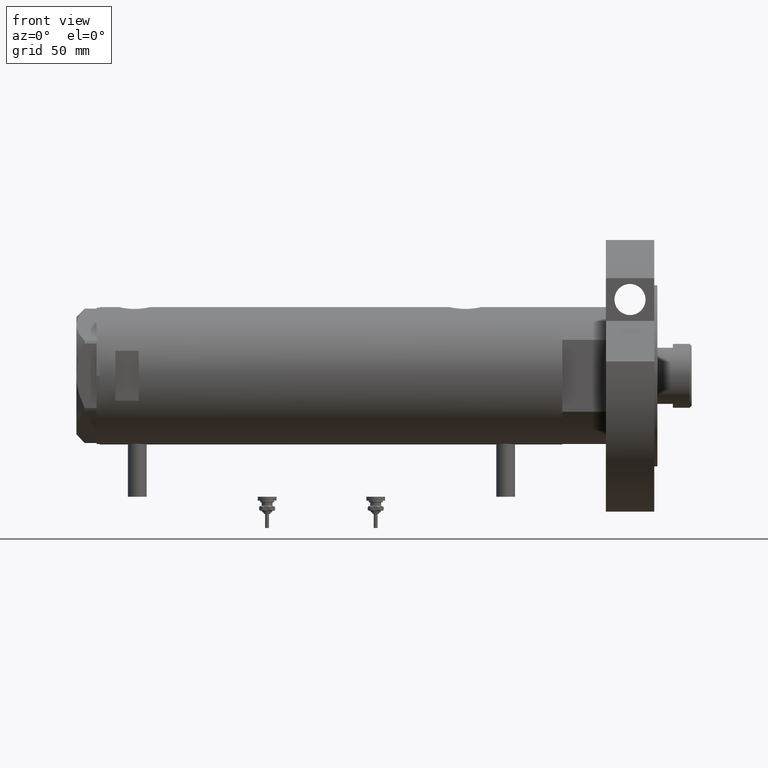
[diagram: clean part render]
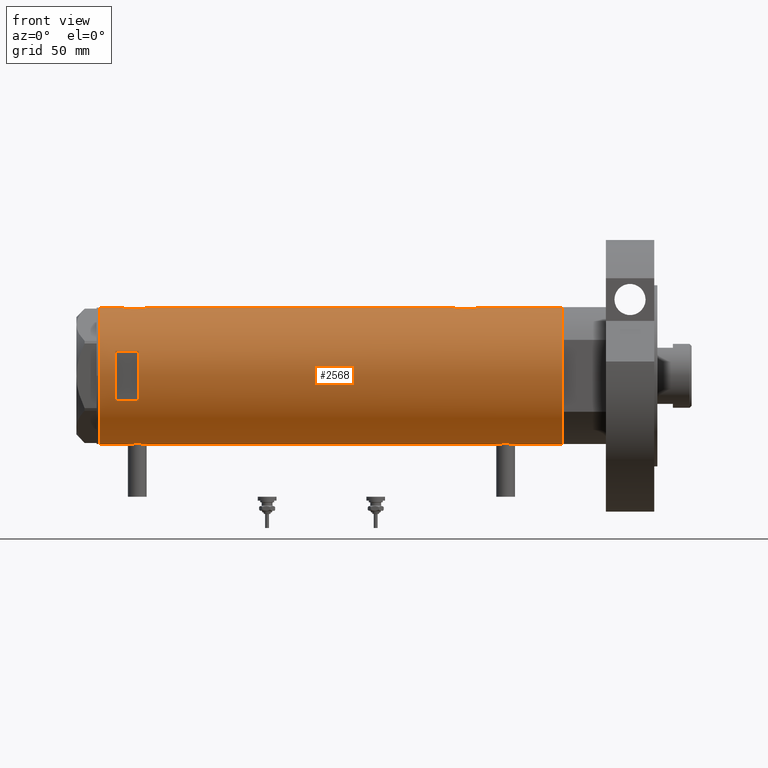
[diagram: same view with one face highlighted and labeled with its STEP entity id]
A machine part, front view. The second image highlights one B-rep face of the part: STEP entity #2568.
In plain terms, the highlighted cylindrical surface (partial cylindrical patch) has radius 44 mm, axis along (-1, -0, 0).
Its self-contained STEP definition (entity closure, byte-faithful):
#16 = CARTESIAN_POINT ( 'NONE',  ( 43.39114022679084570, -7.298186114522522416, 132.7441727949206438 ) ) ;
#41 = CARTESIAN_POINT ( 'NONE',  ( -15.96871942267132027, -40.99999999999999289, 138.1999999999999886 ) ) ;
#49 = CARTESIAN_POINT ( 'NONE',  ( -43.59994860325049615, -5.920144153815568799, 122.1859364243023549 ) ) ;
#110 = CARTESIAN_POINT ( 'NONE',  ( 42.89003040145178147, -9.821289533110931558, -84.13508371670005204 ) ) ;
#151 = CARTESIAN_POINT ( 'NONE',  ( 43.68175117880463887, -5.289576318274435529, -77.60722456708444383 ) ) ;
#162 = DIRECTION ( 'NONE',  ( 0.000000000000000000, 0.000000000000000000, 1.000000000000000000 ) ) ;
#165 = CARTESIAN_POINT ( 'NONE',  ( -43.55380622335314200, -6.250277076879244831, 124.6088983339019194 ) ) ;
#243 = CARTESIAN_POINT ( 'NONE',  ( -43.59959777593760322, -5.922725608094065564, 126.2064931121741864 ) ) ;
#255 = EDGE_CURVE ( 'NONE', #6309, #2042, #7272, .T. ) ;
#264 = DIRECTION ( 'NONE',  ( 0.000000000000000000, 0.000000000000000000, 1.000000000000000000 ) ) ;
#287 = CARTESIAN_POINT ( 'NONE',  ( -43.80623767923740530, -4.134861581628529237, 128.9043636726069337 ) ) ;
#291 = B_SPLINE_CURVE_WITH_KNOTS ( 'NONE', 3,
 ( #1922, #3697, #2521, #4352, #6020, #4841, #4247, #2563, #4880, #6643, #6061, #840, #2601, #3165, #2115, #3316, #1614, #6899, #5716, #4462, #6245, #4992, #1113, #4429, #3388, #6321, #2187, #2719, #2784, #4540, #3956, #3349, #6752, #7394, #5101, #6790, #6210, #7476, #7434, #3279, #5032, #6170, #5681 ),
 .UNSPECIFIED., .F., .F.,
 ( 4, 2, 2, 1, 2, 2, 2, 2, 2, 2, 2, 2, 2, 2, 2, 2, 2, 2, 2, 2, 2, 4 ),
 ( 0.01956509074799517994, 0.02078761141254040559, 0.02139887174481301668, 0.02201013207708563124, 0.02262139240935824580, 0.02323265274163085689, 0.02445517340617610336, 0.02567769407072134982, 0.02690021473526659629, 0.02751147506753922126, 0.02812273539981184622, 0.02934525606435713085, 0.03056777672890241548, 0.03117903706117506127, 0.03179029739344770011, 0.03301281805799302638, 0.03423533872253835264, 0.03545785938708367196, 0.03668038005162899129, 0.03729164038390166136, 0.03790290071617432449, 0.03912542138071965075 ),
 .UNSPECIFIED. ) ;
#341 = VECTOR ( 'NONE', #3260, 1000.000000000000000 ) ;
#345 = CARTESIAN_POINT ( 'NONE',  ( 43.98503203903424463, -1.316644100880403956, -96.03472955295633540 ) ) ;
#353 = CARTESIAN_POINT ( 'NONE',  ( 0.000000000000000000, 0.000000000000000000, -148.1999999999999886 ) ) ;
#418 = CARTESIAN_POINT ( 'NONE',  ( -44.00000000000000000, 5.388445781982983516E-15, 117.9500000000000028 ) ) ;
#425 = CARTESIAN_POINT ( 'NONE',  ( 44.00000000000000000, 0.000000000000000000, 148.1999999999999886 ) ) ;
#448 = LINE ( 'NONE', #5648, #5811 ) ;
#549 = CARTESIAN_POINT ( 'NONE',  ( 43.57790701154752355, -6.104591320335862825, 133.8474130089493315 ) ) ;
#566 = VECTOR ( 'NONE', #7335, 1000.000000000000000 ) ;
#591 = CARTESIAN_POINT ( 'NONE',  ( 43.71626298452614634, -5.019105827807306852, 117.2258656202040470 ) ) ;
#610 = ORIENTED_EDGE ( 'NONE', *, *, #4195, .F. ) ;
#662 = CARTESIAN_POINT ( 'NONE',  ( -43.88927795770376150, -3.124736516396337205, 118.7833259507619630 ) ) ;
#664 = EDGE_CURVE ( 'NONE', #1630, #5552, #6165, .T. ) ;
#688 = EDGE_CURVE ( 'NONE', #3393, #6590, #3245, .T. ) ;
#702 = CARTESIAN_POINT ( 'NONE',  ( 44.00000000000000000, -1.726036355082439716E-15, 115.9000000000000199 ) ) ;
#762 = CARTESIAN_POINT ( 'NONE',  ( 43.24192112218942441, -8.134529092006102857, -91.92552229864112689 ) ) ;
#796 = CARTESIAN_POINT ( 'NONE',  ( 42.84860178791321772, -9.999866241079296003, -85.76603617305838156 ) ) ;
#828 = VERTEX_POINT ( 'NONE', #5873 ) ;
#839 = CARTESIAN_POINT ( 'NONE',  ( 42.96858625215907779, -9.471543237354833167, -82.87555220689219482 ) ) ;
#840 = CARTESIAN_POINT ( 'NONE',  ( -43.80686114384900520, -4.128296917151112133, -116.6101585512831207 ) ) ;
#956 = EDGE_CURVE ( 'NONE', #3393, #5704, #1238, .T. ) ;
#998 = CARTESIAN_POINT ( 'NONE',  ( 43.85817087158034866, -3.542878095418174667, -95.45703661115521754 ) ) ;
#1001 = DIRECTION ( 'NONE',  ( 0.000000000000000000, 0.000000000000000000, 1.000000000000000000 ) ) ;
#1003 = EDGE_CURVE ( 'NONE', #1630, #2663, #448, .T. ) ;
#1060 = ORIENTED_EDGE ( 'NONE', *, *, #3067, .T. ) ;
#1096 = CARTESIAN_POINT ( 'NONE',  ( 42.84860178791323193, -9.999866241079301332, 126.2339638269416895 ) ) ;
#1113 = CARTESIAN_POINT ( 'NONE',  ( -43.55380622335315621, -6.250277076879243943, -111.4911016660981176 ) ) ;
#1115 = CARTESIAN_POINT ( 'NONE',  ( 44.00000000000000000, 0.000000000000000000, -148.1999999999999886 ) ) ;
#1129 = VERTEX_POINT ( 'NONE', #6977 ) ;
#1137 = CARTESIAN_POINT ( 'NONE',  ( 43.92776409818819872, -2.602555515054473467, 135.5780334928707589 ) ) ;
#1170 = CARTESIAN_POINT ( 'NONE',  ( -43.83572624786196315, -3.813948911733267888, 119.2316356977933651 ) ) ;
#1190 = VERTEX_POINT ( 'NONE', #7241 ) ;
#1206 = CARTESIAN_POINT ( 'NONE',  ( -43.64064219598290606, -5.614224114468902904, 121.4231451038052683 ) ) ;
#1210 = CARTESIAN_POINT ( 'NONE',  ( 44.00000000000000000, -3.917205576288906830E-21, 135.9000000000000341 ) ) ;
#1238 = B_SPLINE_CURVE_WITH_KNOTS ( 'NONE', 3,
 ( #4798, #6519, #1347, #1963, #4322, #4201, #3048, #6095, #151, #6642, #4285, #4766, #6678, #4245, #5376, #1425, #7132, #1302, #839, #6564, #110, #7095, #2600, #796, #2484, #3618, #4917, #1390, #3123, #5942, #762, #3086, #5413, #6605, #3696, #6019, #3729, #5455, #3163, #5499, #998, #4501, #6166, #6715, #345, #6130, #2670 ),
 .UNSPECIFIED., .F., .F.,
 ( 4, 2, 2, 2, 2, 2, 2, 2, 2, 2, 1, 2, 2, 2, 2, 2, 2, 2, 2, 2, 2, 2, 2, 4 ),
 ( 0.03136730421198213881, 0.03332724096696802751, 0.03528717772195391622, 0.03626714609944684670, 0.03724711447693978411, 0.03920705123192565894, 0.04018701960941859636, 0.04116698798691152683, 0.04312692474189736697, 0.04410689311939030438, 0.04508686149688324180, 0.04606682987437617921, 0.04704679825186912356, 0.04900673500685504003, 0.05096667176184094955, 0.05292660851682686601, 0.05390657689431983812, 0.05488654527181281717, 0.05586651364930578928, 0.05684648202679876139, 0.05880641878178470561, 0.05978638715927767078, 0.06076635553677063595, 0.06272629229175656629 ),
 .UNSPECIFIED. ) ;
#1246 = CARTESIAN_POINT ( 'NONE',  ( -43.55388615229802696, -6.249720082677238331, 123.7826748588801564 ) ) ;
#1282 = CARTESIAN_POINT ( 'NONE',  ( 43.98503203903423753, -1.316644100880400625, 115.9652704470436788 ) ) ;
#1302 = CARTESIAN_POINT ( 'NONE',  ( 42.99316244204495518, -9.359736474891656499, -82.56396979967827576 ) ) ;
#1321 = CARTESIAN_POINT ( 'NONE',  ( -43.60904414879379942, -5.852991024272610865, 126.4015631665290300 ) ) ;
#1347 = CARTESIAN_POINT ( 'NONE',  ( 43.98543813568861083, -1.304985013906736491, -76.16346933726120483 ) ) ;
#1368 = CARTESIAN_POINT ( 'NONE',  ( -43.66469451360047316, -5.426465874727615990, 127.3277459186421225 ) ) ;
#1390 = CARTESIAN_POINT ( 'NONE',  ( 42.96573602780769363, -9.487415353952519226, -89.32734544583622949 ) ) ;
#1425 = CARTESIAN_POINT ( 'NONE',  ( 43.13833976206232990, -8.672905216733550304, -81.07967078979186226 ) ) ;
#1439 = CARTESIAN_POINT ( 'NONE',  ( -43.95404166778755695, -2.020054257598456360, 130.1180894548565448 ) ) ;
#1443 = VECTOR ( 'NONE', #1001, 1000.000000000000000 ) ;
#1460 = CARTESIAN_POINT ( 'NONE',  ( 15.96871942267132027, -40.99999999999999289, -148.1999999999999886 ) ) ;
#1474 = VERTEX_POINT ( 'NONE', #4014 ) ;
#1486 = CARTESIAN_POINT ( 'NONE',  ( 44.00000000000000000, 0.000000000000000000, -148.1999999999999886 ) ) ;
#1575 = ORIENTED_EDGE ( 'NONE', *, *, #956, .F. ) ;
#1614 = CARTESIAN_POINT ( 'NONE',  ( -43.60943079847655213, -5.850114217193378430, -114.1092187592660849 ) ) ;
#1621 = CARTESIAN_POINT ( 'NONE',  ( 44.00000000000000000, 0.000000000000000000, -148.1999999999999886 ) ) ;
#1630 = VERTEX_POINT ( 'NONE', #3063 ) ;
#1706 = CARTESIAN_POINT ( 'NONE',  ( -43.93596008603758918, -2.395372424984029802, 118.4165081946938756 ) ) ;
#1747 = CARTESIAN_POINT ( 'NONE',  ( 42.86761451923556621, -9.918101748202657220, 127.2186752354962636 ) ) ;
#1781 = CARTESIAN_POINT ( 'NONE',  ( 43.85817087158036287, -3.542878095418166229, 116.5429633888447682 ) ) ;
#1822 = CARTESIAN_POINT ( 'NONE',  ( -43.55981666146649900, -6.208773019004407701, 123.3756200080638195 ) ) ;
#1825 = CARTESIAN_POINT ( 'NONE',  ( 42.84850870634925002, -10.00026508230968325, 125.2441608487825988 ) ) ;
#1848 = VERTEX_POINT ( 'NONE', #425 ) ;
#1867 = ORIENTED_EDGE ( 'NONE', *, *, #6425, .F. ) ;
#1868 = CARTESIAN_POINT ( 'NONE',  ( 43.13689707656755701, -8.680169016269175586, 120.8916309788880312 ) ) ;
#1886 = VERTEX_POINT ( 'NONE', #6837 ) ;
#1898 = CARTESIAN_POINT ( 'NONE',  ( -43.97729452866926891, -1.427712738744846055, 130.2882290744342981 ) ) ;
#1900 = CARTESIAN_POINT ( 'NONE',  ( 43.99999999999998579, -0.6628808997490075461, 115.8999999999999915 ) ) ;
#1922 = CARTESIAN_POINT ( 'NONE',  ( -44.00000000000000000, 5.388445781982983516E-15, -118.1500000000000057 ) ) ;
#1958 = FACE_OUTER_BOUND ( 'NONE', #2143, .T. ) ;
#1963 = CARTESIAN_POINT ( 'NONE',  ( 43.92776409818817740, -2.602555515054471247, -76.42196650712921269 ) ) ;
#1980 = CARTESIAN_POINT ( 'NONE',  ( -43.97029046111976669, -1.628482392291942471, 130.2375861979205354 ) ) ;
#1983 = VECTOR ( 'NONE', #4789, 1000.000000000000000 ) ;
#2027 = LINE ( 'NONE', #7242, #3769 ) ;
#2042 = VERTEX_POINT ( 'NONE', #41 ) ;
#2066 = B_SPLINE_CURVE_WITH_KNOTS ( 'NONE', 3,
 ( #2314, #5312, #2843, #5277, #6923, #2984, #1706, #4063, #662, #4668, #1170, #7001, #4094, #6421, #4138, #1206, #3519, #49, #2387, #4698, #1822, #1246, #165, #3179, #3064, #6500, #243, #1321, #6075, #1368, #7191, #3677, #287, #6034, #2462, #2577, #4931, #1439, #1980, #1898, #5516, #4810, #3102 ),
 .UNSPECIFIED., .F., .F.,
 ( 4, 2, 2, 1, 2, 2, 2, 2, 2, 2, 2, 2, 2, 2, 2, 2, 2, 2, 2, 2, 2, 4 ),
 ( 0.01956509074799516260, 0.02078761141254046457, 0.02139887174481311383, 0.02201013207708576655, 0.02262139240935841580, 0.02323265274163106506, 0.02445517340617638785, 0.02567769407072171411, 0.02690021473526703691, 0.02751147506753969657, 0.02812273539981235970, 0.02934525606435772760, 0.03056777672890308856, 0.03117903706117573087, 0.03179029739344837319, 0.03301281805799358149, 0.03423533872253878979, 0.03545785938708399809, 0.03668038005162919946, 0.03729164038390180014, 0.03790290071617440082, 0.03912542138071962300 ),
 .UNSPECIFIED. ) ;
#2078 = VECTOR ( 'NONE', #264, 1000.000000000000000 ) ;
#2115 = CARTESIAN_POINT ( 'NONE',  ( -43.66524845950890210, -5.422010366683132965, -115.0353804335297809 ) ) ;
#2133 = ORIENTED_EDGE ( 'NONE', *, *, #688, .T. ) ;
#2143 = EDGE_LOOP ( 'NONE', ( #2578, #2201, #2228, #1575, #2133, #2737, #1060, #4001, #7174, #3087, #5996, #610 ) ) ;
#2172 = AXIS2_PLACEMENT_3D ( 'NONE', #6673, #6558, #2441 ) ;
#2187 = CARTESIAN_POINT ( 'NONE',  ( -43.59959777593760322, -5.922725608094071781, -109.8935068878258079 ) ) ;
#2193 = DIRECTION ( 'NONE',  ( 0.000000000000000000, 0.000000000000000000, 1.000000000000000000 ) ) ;
#2201 = ORIENTED_EDGE ( 'NONE', *, *, #664, .T. ) ;
#2217 = VECTOR ( 'NONE', #3802, 1000.000000000000000 ) ;
#2228 = ORIENTED_EDGE ( 'NONE', *, *, #4511, .T. ) ;
#2277 = CARTESIAN_POINT ( 'NONE',  ( 43.27890888111421930, -7.936045294464972422, 131.9931843665719668 ) ) ;
#2287 = EDGE_CURVE ( 'NONE', #1474, #4263, #3922, .T. ) ;
#2314 = CARTESIAN_POINT ( 'NONE',  ( -44.00000000000000000, 5.388445781982983516E-15, 117.9500000000000028 ) ) ;
#2316 = CARTESIAN_POINT ( 'NONE',  ( 43.39001814939471302, -7.304817421876452777, 119.0629653932832497 ) ) ;
#2353 = CARTESIAN_POINT ( 'NONE',  ( 44.00000000000000000, -1.726036355082439716E-15, 115.9000000000000199 ) ) ;
#2355 = CARTESIAN_POINT ( 'NONE',  ( 42.92195198079053142, -9.681069926205541520, 123.3106749909349134 ) ) ;
#2387 = CARTESIAN_POINT ( 'NONE',  ( -43.58358352828439308, -6.039443007521653861, 122.5783690161426023 ) ) ;
#2388 = CARTESIAN_POINT ( 'NONE',  ( 43.88549648731375896, -3.229309612650777872, 135.3866430248638437 ) ) ;
#2422 = DIRECTION ( 'NONE',  ( -1.000000000000000000, 0.000000000000000000, 0.000000000000000000 ) ) ;
#2427 = CARTESIAN_POINT ( 'NONE',  ( 43.35323102813806173, -7.519449998269469582, 132.5004228928426642 ) ) ;
#2441 = DIRECTION ( 'NONE',  ( 1.000000000000000000, 0.000000000000000000, 0.000000000000000000 ) ) ;
#2458 = CIRCLE ( 'NONE', #5980, 44.00000000000000000 ) ;
#2462 = CARTESIAN_POINT ( 'NONE',  ( -43.88932649443425049, -3.137583818903188160, 129.6209903805954866 ) ) ;
#2484 = CARTESIAN_POINT ( 'NONE',  ( 42.84850870634926423, -10.00026508230968503, -86.75583915121745804 ) ) ;
#2521 = CARTESIAN_POINT ( 'NONE',  ( -43.99432382855034973, -0.8140126287075730716, -118.1104216681691526 ) ) ;
#2539 = CARTESIAN_POINT ( 'NONE',  ( 0.000000000000000000, 0.000000000000000000, 148.1999999999999886 ) ) ;
#2563 = CARTESIAN_POINT ( 'NONE',  ( -43.91347832647110039, -2.763895659397271665, -117.5093864937758497 ) ) ;
#2568 = ADVANCED_FACE ( 'NONE', ( #1958, #7243 ), #5978, .T. ) ;
#2577 = CARTESIAN_POINT ( 'NONE',  ( -43.91398925748692506, -2.775454910411446541, 129.8147077568106624 ) ) ;
#2578 = ORIENTED_EDGE ( 'NONE', *, *, #1003, .F. ) ;
#2580 = CARTESIAN_POINT ( 'NONE',  ( 43.92391465552169194, -2.605621203777300554, 116.2398198489821937 ) ) ;
#2600 = CARTESIAN_POINT ( 'NONE',  ( 42.85249883256043546, -9.983208936152868418, -85.43427783458179192 ) ) ;
#2601 = CARTESIAN_POINT ( 'NONE',  ( -43.74870614644074607, -4.704745394280565485, -116.0344648734002249 ) ) ;
#2663 = VERTEX_POINT ( 'NONE', #6202 ) ;
#2670 = CARTESIAN_POINT ( 'NONE',  ( 44.00000000000000000, -2.552687571866728611E-15, -96.10000000000000853 ) ) ;
#2719 = CARTESIAN_POINT ( 'NONE',  ( -43.60904414879379942, -5.852991024272603759, -109.6984368334709075 ) ) ;
#2737 = ORIENTED_EDGE ( 'NONE', *, *, #7427, .F. ) ;
#2784 = CARTESIAN_POINT ( 'NONE',  ( -43.64013512596971367, -5.618144550806293047, -109.1311574562683404 ) ) ;
#2843 = CARTESIAN_POINT ( 'NONE',  ( -43.99432382855035684, -0.8140126287075735156, 117.9895783318308560 ) ) ;
#2878 = CARTESIAN_POINT ( 'NONE',  ( 43.07447880731469780, -8.980869115410031966, 130.3470997020410209 ) ) ;
#2905 = VERTEX_POINT ( 'NONE', #5207 ) ;
#2916 = CARTESIAN_POINT ( 'NONE',  ( 43.80655905412561424, -4.132395729537634566, 135.0120532619376377 ) ) ;
#2984 = CARTESIAN_POINT ( 'NONE',  ( -43.95442538259508325, -2.011679190499021885, 118.2790645349021617 ) ) ;
#2985 = CARTESIAN_POINT ( 'NONE',  ( 43.71528002050701645, -5.005885132985630648, 134.5630630671448955 ) ) ;
#3048 = CARTESIAN_POINT ( 'NONE',  ( 43.77763691689010273, -4.427538730370040199, -77.12757287791932015 ) ) ;
#3063 = CARTESIAN_POINT ( 'NONE',  ( -44.00000000000000000, 5.388445916248353619E-15, -148.1999999999999886 ) ) ;
#3064 = CARTESIAN_POINT ( 'NONE',  ( -43.57636709704393496, -6.091127289750671636, 125.6149932566098215 ) ) ;
#3067 = EDGE_CURVE ( 'NONE', #1886, #1848, #7268, .T. ) ;
#3086 = CARTESIAN_POINT ( 'NONE',  ( 43.27861175590267351, -7.937636171351966752, -92.19102867990994810 ) ) ;
#3087 = ORIENTED_EDGE ( 'NONE', *, *, #6666, .F. ) ;
#3102 = CARTESIAN_POINT ( 'NONE',  ( -44.00000000000000000, 3.205170455528113082E-15, 130.4500000000000171 ) ) ;
#3103 = ORIENTED_EDGE ( 'NONE', *, *, #3530, .F. ) ;
#3123 = CARTESIAN_POINT ( 'NONE',  ( 43.07321175413309788, -8.986876637256990819, -90.53428201988754154 ) ) ;
#3163 = CARTESIAN_POINT ( 'NONE',  ( 43.71626298452615345, -5.019105827807321951, -94.77413437979603827 ) ) ;
#3165 = CARTESIAN_POINT ( 'NONE',  ( -43.71916086763248899, -4.968610719017467758, -115.7133599885462871 ) ) ;
#3179 = CARTESIAN_POINT ( 'NONE',  ( -43.55964145621772587, -6.209995197331128480, 125.0152361338357565 ) ) ;
#3245 = LINE ( 'NONE', #1621, #566 ) ;
#3260 = DIRECTION ( 'NONE',  ( 0.000000000000000000, 0.000000000000000000, 1.000000000000000000 ) ) ;
#3279 = CARTESIAN_POINT ( 'NONE',  ( -43.97729452866927602, -1.427712738744854715, -105.8117709255657815 ) ) ;
#3280 = CARTESIAN_POINT ( 'NONE',  ( -44.00000000000000000, 5.388445916248353619E-15, -148.1999999999999886 ) ) ;
#3316 = CARTESIAN_POINT ( 'NONE',  ( -43.64064219598290606, -5.614224114468902904, -114.6768548961947261 ) ) ;
#3346 = DIRECTION ( 'NONE',  ( 0.000000000000000000, 0.000000000000000000, 1.000000000000000000 ) ) ;
#3349 = CARTESIAN_POINT ( 'NONE',  ( -43.74813644611199948, -4.709999724143497879, -107.7715595605677095 ) ) ;
#3388 = CARTESIAN_POINT ( 'NONE',  ( -43.57636709704394917, -6.091127289750676077, -110.4850067433901586 ) ) ;
#3393 = VERTEX_POINT ( 'NONE', #3937 ) ;
#3410 = CARTESIAN_POINT ( 'NONE',  ( 43.35257225115238100, -7.523216248090027314, 119.3039469640765731 ) ) ;
#3519 = CARTESIAN_POINT ( 'NONE',  ( -43.60943079847653792, -5.850114217193379318, 121.9907812407339378 ) ) ;
#3521 = CARTESIAN_POINT ( 'NONE',  ( 42.86369059155248351, -9.935849517229273786, 124.5936258998180222 ) ) ;
#3530 = EDGE_CURVE ( 'NONE', #1190, #828, #5940, .T. ) ;
#3618 = CARTESIAN_POINT ( 'NONE',  ( 42.86369059155249772, -9.935849517229277339, -87.40637410018203468 ) ) ;
#3637 = CARTESIAN_POINT ( 'NONE',  ( 43.88203303552249679, -3.235230624304762603, 116.4320738693601811 ) ) ;
#3677 = CARTESIAN_POINT ( 'NONE',  ( -43.74813644611202079, -4.709999724143500544, 128.3284404394322564 ) ) ;
#3696 = CARTESIAN_POINT ( 'NONE',  ( 43.46477581456301920, -6.845969322274847890, -93.39644460123308534 ) ) ;
#3697 = CARTESIAN_POINT ( 'NONE',  ( -44.00000000000001421, -0.4080709675389184166, -118.1500000000000341 ) ) ;
#3729 = CARTESIAN_POINT ( 'NONE',  ( 43.57553740812846144, -6.102230194686624642, -94.02899655988670702 ) ) ;
#3750 = CARTESIAN_POINT ( 'NONE',  ( 0.000000000000000000, 0.000000000000000000, 138.1999999999999886 ) ) ;
#3769 = VECTOR ( 'NONE', #4234, 1000.000000000000000 ) ;
#3802 = DIRECTION ( 'NONE',  ( 0.000000000000000000, 0.000000000000000000, 1.000000000000000000 ) ) ;
#3834 = ORIENTED_EDGE ( 'NONE', *, *, #5955, .F. ) ;
#3922 = LINE ( 'NONE', #3280, #1443 ) ;
#3937 = CARTESIAN_POINT ( 'NONE',  ( 44.00000000000000000, -3.917104602093038540E-21, -76.10000000000000853 ) ) ;
#3956 = CARTESIAN_POINT ( 'NONE',  ( -43.71863308610073773, -4.973248429199020215, -108.0926220987882687 ) ) ;
#4001 = ORIENTED_EDGE ( 'NONE', *, *, #6739, .F. ) ;
#4014 = CARTESIAN_POINT ( 'NONE',  ( -44.00000000000000000, 4.742435893011557518E-16, -105.6499999999999915 ) ) ;
#4063 = CARTESIAN_POINT ( 'NONE',  ( -43.91347832647110039, -2.763895659397270776, 118.5906135062241589 ) ) ;
#4064 = CARTESIAN_POINT ( 'NONE',  ( 43.57553740812844723, -6.102230194686611320, 117.9710034401132788 ) ) ;
#4094 = CARTESIAN_POINT ( 'NONE',  ( -43.74870614644076738, -4.704745394280562820, 120.0655351265997410 ) ) ;
#4138 = CARTESIAN_POINT ( 'NONE',  ( -43.66524845950888789, -5.422010366683132965, 121.0646195664701850 ) ) ;
#4141 = CARTESIAN_POINT ( 'NONE',  ( 42.96573602780769363, -9.487415353952519226, 122.6726545541638274 ) ) ;
#4195 = EDGE_CURVE ( 'NONE', #2663, #1474, #291, .T. ) ;
#4201 = CARTESIAN_POINT ( 'NONE',  ( 43.80655905412562134, -4.132395729537634566, -76.98794673806234812 ) ) ;
#4234 = DIRECTION ( 'NONE',  ( 0.000000000000000000, 0.000000000000000000, 1.000000000000000000 ) ) ;
#4236 = LINE ( 'NONE', #1460, #2217 ) ;
#4245 = CARTESIAN_POINT ( 'NONE',  ( 43.27890888111423351, -7.936045294464974198, -80.00681563342807578 ) ) ;
#4247 = CARTESIAN_POINT ( 'NONE',  ( -43.93596008603760339, -2.395372424984027582, -117.6834918053061330 ) ) ;
#4263 = VERTEX_POINT ( 'NONE', #418 ) ;
#4269 = CARTESIAN_POINT ( 'NONE',  ( -15.96871942267132027, -40.99999999999999289, -148.1999999999999886 ) ) ;
#4285 = CARTESIAN_POINT ( 'NONE',  ( 43.50370990764398016, -6.606474645717129057, -78.56479064715114191 ) ) ;
#4322 = CARTESIAN_POINT ( 'NONE',  ( 43.88549648731377317, -3.229309612650779648, -76.61335697513617049 ) ) ;
#4352 = CARTESIAN_POINT ( 'NONE',  ( -43.97755541524606571, -1.419649999726221967, -117.9901114392363439 ) ) ;
#4429 = CARTESIAN_POINT ( 'NONE',  ( -43.55964145621772587, -6.209995197331129368, -111.0847638661642947 ) ) ;
#4436 = DIRECTION ( 'NONE',  ( 1.000000000000000000, 0.000000000000000000, 0.000000000000000000 ) ) ;
#4462 = CARTESIAN_POINT ( 'NONE',  ( -43.57664920749031978, -6.089110472216501257, -113.3236308686941385 ) ) ;
#4501 = CARTESIAN_POINT ( 'NONE',  ( 43.88203303552248968, -3.235230624304769709, -95.56792613063983310 ) ) ;
#4502 = EDGE_CURVE ( 'NONE', #2905, #1129, #2027, .T. ) ;
#4511 = EDGE_CURVE ( 'NONE', #5552, #5704, #7128, .T. ) ;
#4540 = CARTESIAN_POINT ( 'NONE',  ( -43.66469451360045895, -5.426465874727613325, -108.7722540813579002 ) ) ;
#4564 = EDGE_LOOP ( 'NONE', ( #3103, #1867, #5485, #3834 ) ) ;
#4633 = CARTESIAN_POINT ( 'NONE',  ( 42.89003040145177437, -9.821289533110936887, 127.8649162832999622 ) ) ;
#4668 = CARTESIAN_POINT ( 'NONE',  ( -43.87623998657198143, -3.302247739865014964, 118.8896565648025785 ) ) ;
#4669 = CARTESIAN_POINT ( 'NONE',  ( 43.77905627191559290, -4.445085099228545111, 116.9185916568396806 ) ) ;
#4698 = CARTESIAN_POINT ( 'NONE',  ( -43.57664920749031978, -6.089110472216502146, 122.7763691313058985 ) ) ;
#4700 = CARTESIAN_POINT ( 'NONE',  ( 43.50370990764397305, -6.606474645717115735, 133.4352093528489149 ) ) ;
#4704 = AXIS2_PLACEMENT_3D ( 'NONE', #353, #2193, #4436 ) ;
#4742 = CARTESIAN_POINT ( 'NONE',  ( 43.07321175413309078, -8.986876637256990819, 121.4657179801124727 ) ) ;
#4766 = CARTESIAN_POINT ( 'NONE',  ( 43.39114022679083860, -7.298186114522535739, -79.25582720507938461 ) ) ;
#4789 = DIRECTION ( 'NONE',  ( -0.000000000000000000, -0.000000000000000000, -1.000000000000000000 ) ) ;
#4798 = CARTESIAN_POINT ( 'NONE',  ( 44.00000000000000000, -3.917104602093038540E-21, -76.10000000000000853 ) ) ;
#4810 = CARTESIAN_POINT ( 'NONE',  ( -43.99999999999999289, -0.4134142287044815789, 130.4500000000000455 ) ) ;
#4812 = CARTESIAN_POINT ( 'NONE',  ( 43.94187300917954531, -2.283844398366604800, 116.1587395318295250 ) ) ;
#4813 = DIRECTION ( 'NONE',  ( -0.000000000000000000, 0.000000000000000000, -1.000000000000000000 ) ) ;
#4841 = CARTESIAN_POINT ( 'NONE',  ( -43.95442538259509746, -2.011679190499023662, -117.8209354650977616 ) ) ;
#4854 = DIRECTION ( 'NONE',  ( 1.000000000000000000, 0.000000000000000000, 0.000000000000000000 ) ) ;
#4880 = CARTESIAN_POINT ( 'NONE',  ( -43.88927795770375440, -3.124736516396337649, -117.3166740492380598 ) ) ;
#4917 = CARTESIAN_POINT ( 'NONE',  ( 42.92195198079053142, -9.681069926205539744, -88.68932500906515770 ) ) ;
#4931 = CARTESIAN_POINT ( 'NONE',  ( -43.94477385411916259, -2.211843467998029222, 130.0490722992286408 ) ) ;
#4992 = CARTESIAN_POINT ( 'NONE',  ( -43.55388615229803406, -6.249720082677240107, -112.3173251411198379 ) ) ;
#5032 = CARTESIAN_POINT ( 'NONE',  ( -43.99417593155912698, -0.8219945290704717689, -105.6906189758703931 ) ) ;
#5101 = CARTESIAN_POINT ( 'NONE',  ( -43.88932649443422918, -3.137583818903199262, -106.4790096194045788 ) ) ;
#5199 = CARTESIAN_POINT ( 'NONE',  ( 42.99316244204496229, -9.359736474891649394, 129.4360302003217669 ) ) ;
#5207 = CARTESIAN_POINT ( 'NONE',  ( -44.00000000000000000, 3.205170455528113082E-15, 130.4500000000000171 ) ) ;
#5242 = CARTESIAN_POINT ( 'NONE',  ( 43.24269204559828239, -8.130405600641548602, 131.7311450280699034 ) ) ;
#5277 = CARTESIAN_POINT ( 'NONE',  ( -43.97755541524607992, -1.419649999726221745, 118.1098885607636646 ) ) ;
#5312 = CARTESIAN_POINT ( 'NONE',  ( -44.00000000000001421, -0.4080709675389180835, 117.9500000000000171 ) ) ;
#5314 = CARTESIAN_POINT ( 'NONE',  ( 43.68175117880464597, -5.289576318274422206, 134.3927754329155846 ) ) ;
#5376 = CARTESIAN_POINT ( 'NONE',  ( 43.24269204559829660, -8.130405600641545050, -80.26885497193008234 ) ) ;
#5413 = CARTESIAN_POINT ( 'NONE',  ( 43.35257225115238811, -7.523216248090025537, -92.69605303592345535 ) ) ;
#5440 = AXIS2_PLACEMENT_3D ( 'NONE', #3750, #4813, #6732 ) ;
#5455 = CARTESIAN_POINT ( 'NONE',  ( 43.61181667275830165, -5.838254419127787642, -94.22544109417493985 ) ) ;
#5471 = DIRECTION ( 'NONE',  ( 0.000000000000000000, 0.000000000000000000, 1.000000000000000000 ) ) ;
#5485 = ORIENTED_EDGE ( 'NONE', *, *, #255, .F. ) ;
#5499 = CARTESIAN_POINT ( 'NONE',  ( 43.77905627191558580, -4.445085099228550440, -95.08140834316036205 ) ) ;
#5516 = CARTESIAN_POINT ( 'NONE',  ( -43.99417593155911987, -0.8219945290704597785, 130.4093810241296012 ) ) ;
#5552 = VERTEX_POINT ( 'NONE', #1115 ) ;
#5648 = CARTESIAN_POINT ( 'NONE',  ( -44.00000000000000000, 5.388445916248353619E-15, -148.1999999999999886 ) ) ;
#5681 = CARTESIAN_POINT ( 'NONE',  ( -44.00000000000000000, 4.742435893011557518E-16, -105.6499999999999915 ) ) ;
#5704 = VERTEX_POINT ( 'NONE', #6482 ) ;
#5716 = CARTESIAN_POINT ( 'NONE',  ( -43.58358352828439308, -6.039443007521657414, -113.5216309838574347 ) ) ;
#5811 = VECTOR ( 'NONE', #3346, 1000.000000000000000 ) ;
#5873 = CARTESIAN_POINT ( 'NONE',  ( 15.96871942267132027, -40.99999999999999289, 123.1999999999999744 ) ) ;
#5888 = CARTESIAN_POINT ( 'NONE',  ( 42.92612181419237771, -9.662173761604313071, 128.4979978960971323 ) ) ;
#5940 = CIRCLE ( 'NONE', #6919, 44.00000000000000000 ) ;
#5942 = CARTESIAN_POINT ( 'NONE',  ( 43.13689707656756411, -8.680169016269173810, -91.10836902111202562 ) ) ;
#5955 = EDGE_CURVE ( 'NONE', #828, #6309, #4236, .T. ) ;
#5978 = CYLINDRICAL_SURFACE ( 'NONE', #2172, 44.00000000000000000 ) ;
#5980 = AXIS2_PLACEMENT_3D ( 'NONE', #2539, #5471, #4854 ) ;
#5996 = ORIENTED_EDGE ( 'NONE', *, *, #2287, .F. ) ;
#6019 = CARTESIAN_POINT ( 'NONE',  ( 43.50208939911752992, -6.605519787823897815, -93.61487246254432648 ) ) ;
#6020 = CARTESIAN_POINT ( 'NONE',  ( -43.97059312650996787, -1.620278982928820888, -117.9397869138586827 ) ) ;
#6034 = CARTESIAN_POINT ( 'NONE',  ( -43.83513771791772484, -3.820747781112540764, 129.1632101829637236 ) ) ;
#6061 = CARTESIAN_POINT ( 'NONE',  ( -43.83572624786197025, -3.813948911733268776, -116.8683643022066150 ) ) ;
#6075 = CARTESIAN_POINT ( 'NONE',  ( -43.64013512596971367, -5.618144550806302817, 126.9688425437316681 ) ) ;
#6088 = CARTESIAN_POINT ( 'NONE',  ( 44.00000000000000000, 0.000000000000000000, -148.1999999999999886 ) ) ;
#6095 = CARTESIAN_POINT ( 'NONE',  ( 43.71528002050701645, -5.005885132985640418, -77.43693693285514712 ) ) ;
#6130 = CARTESIAN_POINT ( 'NONE',  ( 43.99999999999999289, -0.6628808997490059918, -96.10000000000000853 ) ) ;
#6165 = CIRCLE ( 'NONE', #4704, 44.00000000000000000 ) ;
#6166 = CARTESIAN_POINT ( 'NONE',  ( 43.92391465552168484, -2.605621203777308104, -95.76018015101779213 ) ) ;
#6170 = CARTESIAN_POINT ( 'NONE',  ( -44.00000000000000711, -0.4134142287044808017, -105.6500000000000057 ) ) ;
#6202 = CARTESIAN_POINT ( 'NONE',  ( -44.00000000000000000, 5.388445781982983516E-15, -118.1500000000000057 ) ) ;
#6210 = CARTESIAN_POINT ( 'NONE',  ( -43.94477385411916970, -2.211843467998029666, -106.0509277007713678 ) ) ;
#6245 = CARTESIAN_POINT ( 'NONE',  ( -43.55981666146650610, -6.208773019004409477, -112.7243799919361606 ) ) ;
#6307 = CARTESIAN_POINT ( 'NONE',  ( 43.27861175590269482, -7.937636171351966752, 119.8089713200900661 ) ) ;
#6309 = VERTEX_POINT ( 'NONE', #6432 ) ;
#6321 = CARTESIAN_POINT ( 'NONE',  ( -43.58327167020068060, -6.041691433183235205, -110.2867244921663428 ) ) ;
#6351 = CARTESIAN_POINT ( 'NONE',  ( 43.98543813568862504, -1.304985013906734048, 135.8365306627388236 ) ) ;
#6387 = CARTESIAN_POINT ( 'NONE',  ( 43.61181667275830875, -5.838254419127776096, 117.7745589058250744 ) ) ;
#6421 = CARTESIAN_POINT ( 'NONE',  ( -43.71916086763250320, -4.968610719017469535, 120.3866400114537782 ) ) ;
#6424 = CARTESIAN_POINT ( 'NONE',  ( 43.46477581456304051, -6.845969322274839008, 118.6035553987669147 ) ) ;
#6425 = EDGE_CURVE ( 'NONE', #2042, #1190, #6665, .T. ) ;
#6432 = CARTESIAN_POINT ( 'NONE',  ( 15.96871942267132027, -40.99999999999999289, 138.1999999999999886 ) ) ;
#6462 = CARTESIAN_POINT ( 'NONE',  ( 42.85249883256044257, -9.983208936152875523, 126.5657221654182791 ) ) ;
#6482 = CARTESIAN_POINT ( 'NONE',  ( 44.00000000000000000, -2.552687571866728611E-15, -96.10000000000000853 ) ) ;
#6500 = CARTESIAN_POINT ( 'NONE',  ( -43.58327167020067350, -6.041691433183231652, 125.8132755078336658 ) ) ;
#6519 = CARTESIAN_POINT ( 'NONE',  ( 44.00000000000000000, -0.6537011444665536963, -76.10000000000002274 ) ) ;
#6558 = DIRECTION ( 'NONE',  ( 0.000000000000000000, 0.000000000000000000, 1.000000000000000000 ) ) ;
#6564 = CARTESIAN_POINT ( 'NONE',  ( 42.92612181419234219, -9.662173761604309519, -83.50200210390283928 ) ) ;
#6590 = VERTEX_POINT ( 'NONE', #2353 ) ;
#6605 = CARTESIAN_POINT ( 'NONE',  ( 43.39001814939470592, -7.304817421876465211, -92.93703460671677874 ) ) ;
#6642 = CARTESIAN_POINT ( 'NONE',  ( 43.57790701154753066, -6.104591320335878812, -78.15258699105068274 ) ) ;
#6643 = CARTESIAN_POINT ( 'NONE',  ( -43.87623998657198143, -3.302247739865014964, -117.2103434351974443 ) ) ;
#6665 = LINE ( 'NONE', #4269, #1983 ) ;
#6666 = EDGE_CURVE ( 'NONE', #4263, #2905, #2066, .T. ) ;
#6673 = CARTESIAN_POINT ( 'NONE',  ( 0.000000000000000000, 0.000000000000000000, -148.1999999999999886 ) ) ;
#6678 = CARTESIAN_POINT ( 'NONE',  ( 43.35323102813806173, -7.519449998269473134, -79.49957710715735004 ) ) ;
#6715 = CARTESIAN_POINT ( 'NONE',  ( 43.94187300917954531, -2.283844398366611905, -95.84126046817046074 ) ) ;
#6732 = DIRECTION ( 'NONE',  ( 1.000000000000000000, 0.000000000000000000, 0.000000000000000000 ) ) ;
#6739 = EDGE_CURVE ( 'NONE', #1129, #1848, #2458, .T. ) ;
#6752 = CARTESIAN_POINT ( 'NONE',  ( -43.80623767923739109, -4.134861581628527460, -107.1956363273930464 ) ) ;
#6774 = B_SPLINE_CURVE_WITH_KNOTS ( 'NONE', 3,
 ( #1210, #6925, #6351, #1137, #2388, #2916, #7494, #2985, #5314, #549, #4700, #16, #2427, #2277, #5242, #7040, #2878, #5199, #7075, #5888, #4633, #1747, #6462, #1096, #1825, #3521, #2355, #4141, #4742, #1868, #7534, #6307, #3410, #2316, #6424, #6967, #4064, #6387, #591, #4669, #1781, #3637, #2580, #4812, #1282, #1900, #702 ),
 .UNSPECIFIED., .F., .F.,
 ( 4, 2, 2, 2, 2, 2, 2, 2, 2, 2, 1, 2, 2, 2, 2, 2, 2, 2, 2, 2, 2, 2, 2, 4 ),
 ( 0.03136730421198213187, 0.03332724096696802751, 0.03528717772195392316, 0.03626714609944686751, 0.03724711447693981187, 0.03920705123192570751, 0.04018701960941865881, 0.04116698798691159622, 0.04312692474189755432, 0.04410689311939049867, 0.04508686149688344302, 0.04606682987437638044, 0.04704679825186932479, 0.04900673500685520656, 0.05096667176184109527, 0.05292660851682697010, 0.05390657689431993527, 0.05488654527181288656, 0.05586651364930585173, 0.05684648202679880302, 0.05880641878178471949, 0.05978638715927768466, 0.06076635553677064983, 0.06272629229175658017 ),
 .UNSPECIFIED. ) ;
#6790 = CARTESIAN_POINT ( 'NONE',  ( -43.91398925748691084, -2.775454910411443876, -106.2852922431893319 ) ) ;
#6837 = CARTESIAN_POINT ( 'NONE',  ( 44.00000000000000000, -3.917205576288906830E-21, 135.9000000000000341 ) ) ;
#6899 = CARTESIAN_POINT ( 'NONE',  ( -43.59994860325051036, -5.920144153815573240, -113.9140635756975968 ) ) ;
#6919 = AXIS2_PLACEMENT_3D ( 'NONE', #7034, #162, #2422 ) ;
#6923 = CARTESIAN_POINT ( 'NONE',  ( -43.97059312650997498, -1.620278982928819778, 118.1602130861413116 ) ) ;
#6925 = CARTESIAN_POINT ( 'NONE',  ( 43.99999999999999289, -0.6537011444665495885, 135.9000000000000341 ) ) ;
#6967 = CARTESIAN_POINT ( 'NONE',  ( 43.50208939911753703, -6.605519787823886269, 118.3851275374557162 ) ) ;
#6977 = CARTESIAN_POINT ( 'NONE',  ( -44.00000000000000000, 5.388445916248353619E-15, 148.1999999999999886 ) ) ;
#7001 = CARTESIAN_POINT ( 'NONE',  ( -43.80686114384899810, -4.128296917151109469, 119.4898414487168878 ) ) ;
#7034 = CARTESIAN_POINT ( 'NONE',  ( 0.000000000000000000, 0.000000000000000000, 123.1999999999999744 ) ) ;
#7040 = CARTESIAN_POINT ( 'NONE',  ( 43.13833976206232990, -8.672905216733560962, 130.9203292102081377 ) ) ;
#7075 = CARTESIAN_POINT ( 'NONE',  ( 42.96858625215908489, -9.471543237354838496, 129.1244477931078336 ) ) ;
#7095 = CARTESIAN_POINT ( 'NONE',  ( 42.86761451923556621, -9.918101748202653667, -84.78132476450375066 ) ) ;
#7128 = LINE ( 'NONE', #6088, #2078 ) ;
#7132 = CARTESIAN_POINT ( 'NONE',  ( 43.07447880731469780, -8.980869115410037296, -81.65290029795900750 ) ) ;
#7174 = ORIENTED_EDGE ( 'NONE', *, *, #4502, .F. ) ;
#7191 = CARTESIAN_POINT ( 'NONE',  ( -43.71863308610075194, -4.973248429199021992, 128.0073779012117257 ) ) ;
#7241 = CARTESIAN_POINT ( 'NONE',  ( -15.96871942267132027, -40.99999999999999289, 123.1999999999999744 ) ) ;
#7242 = CARTESIAN_POINT ( 'NONE',  ( -44.00000000000000000, 5.388445916248353619E-15, -148.1999999999999886 ) ) ;
#7243 = FACE_BOUND ( 'NONE', #4564, .T. ) ;
#7268 = LINE ( 'NONE', #1486, #341 ) ;
#7272 = CIRCLE ( 'NONE', #5440, 44.00000000000000000 ) ;
#7335 = DIRECTION ( 'NONE',  ( 0.000000000000000000, 0.000000000000000000, 1.000000000000000000 ) ) ;
#7394 = CARTESIAN_POINT ( 'NONE',  ( -43.83513771791772484, -3.820747781112549202, -106.9367898170362565 ) ) ;
#7427 = EDGE_CURVE ( 'NONE', #1886, #6590, #6774, .T. ) ;
#7434 = CARTESIAN_POINT ( 'NONE',  ( -43.97029046111977379, -1.628482392291957126, -105.8624138020794447 ) ) ;
#7476 = CARTESIAN_POINT ( 'NONE',  ( -43.95404166778755695, -2.020054257598466574, -105.9819105451434638 ) ) ;
#7494 = CARTESIAN_POINT ( 'NONE',  ( 43.77763691689009562, -4.427538730370028652, 134.8724271220806656 ) ) ;
#7534 = CARTESIAN_POINT ( 'NONE',  ( 43.24192112218942441, -8.134529092006102857, 120.0744777013589299 ) ) ;